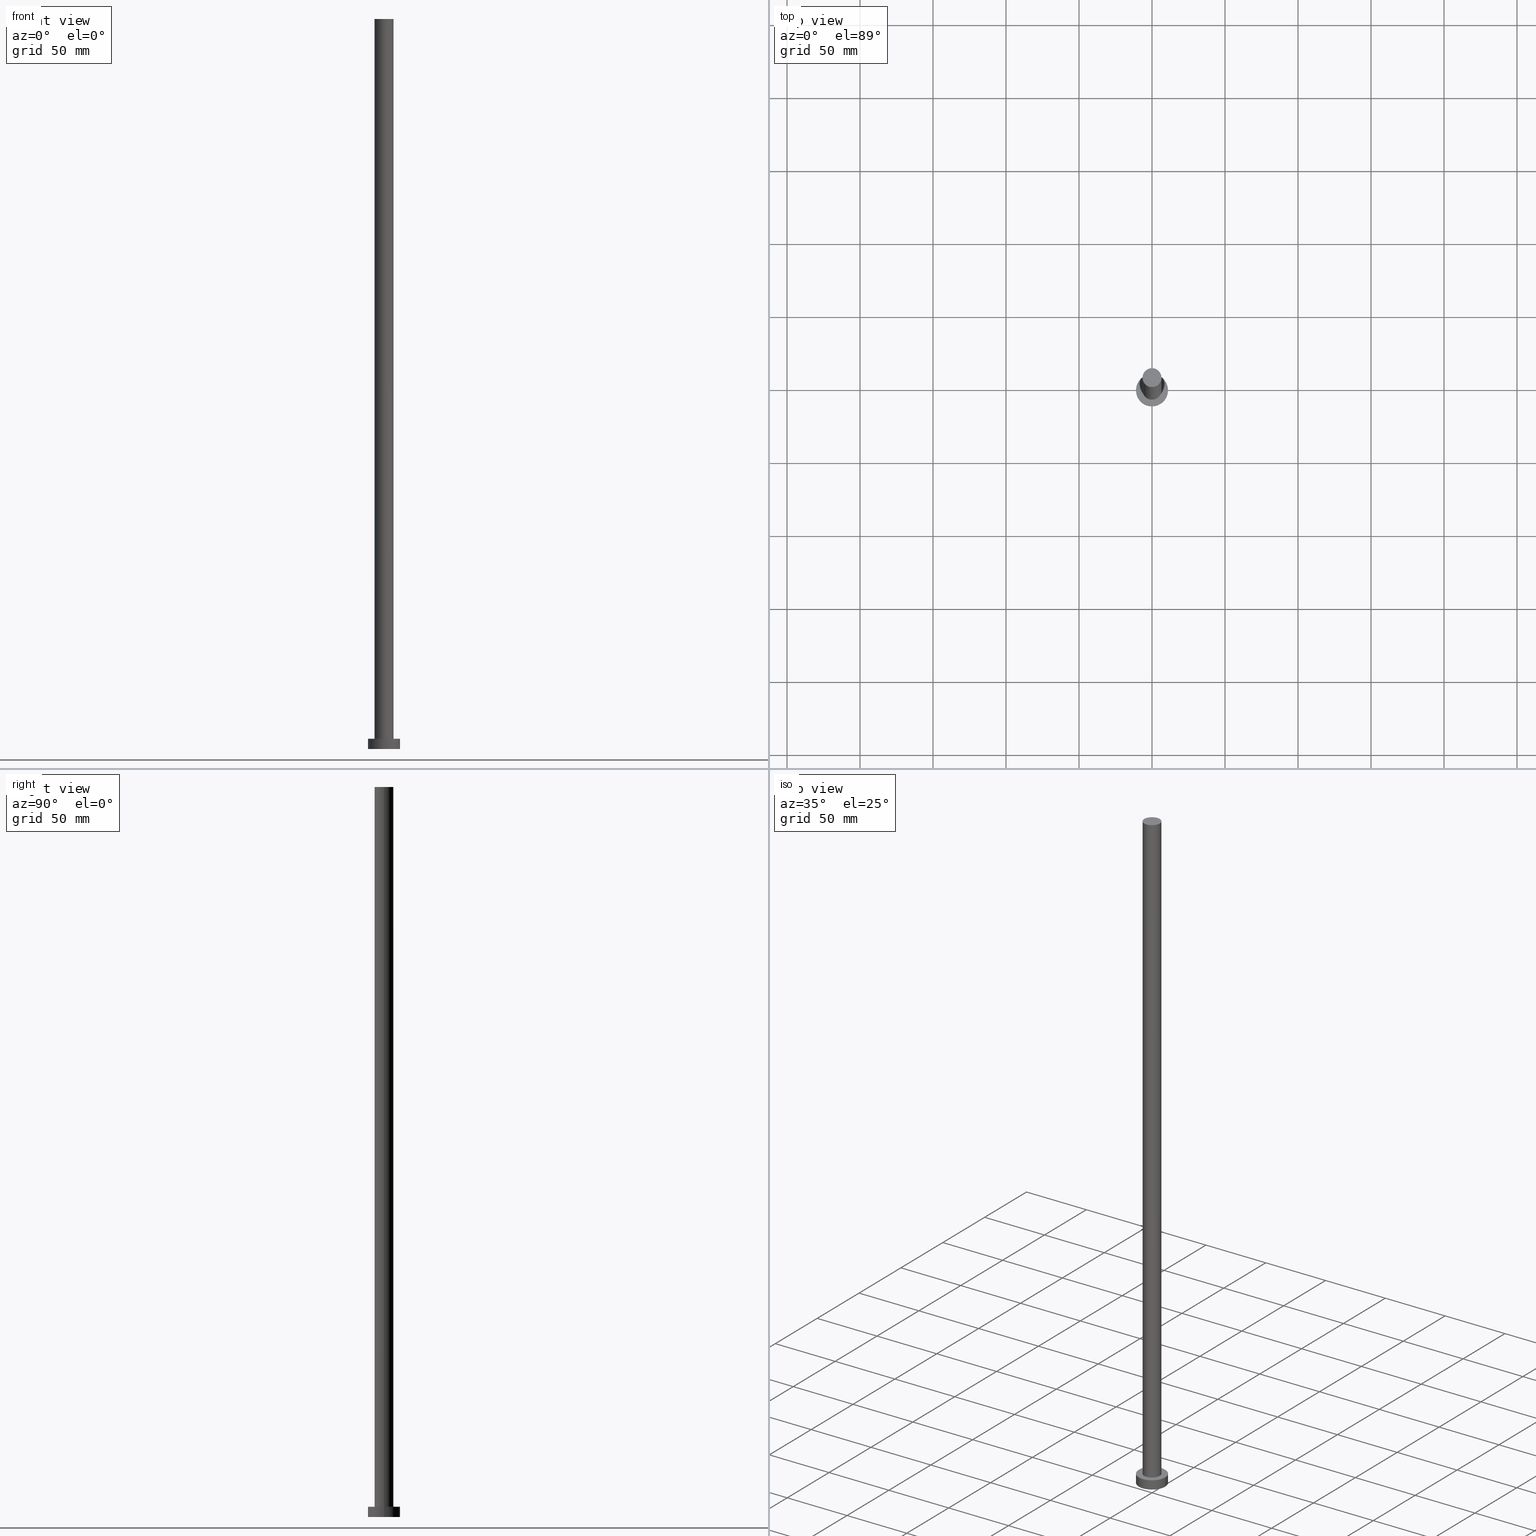
[diagram: canonical four-view strip — front | top / right | iso, engineering-drawing reading convention]
A machine part, canonical four-view strip (front | top / right | iso — engineering-drawing reading convention). The complete STEP part file that produces these views, byte-faithful:
ISO-10303-21;
HEADER;
FILE_DESCRIPTION (( 'STEP AP203' ),
    '1' );
FILE_NAME ('ee39.STEP',
    '2023-02-13T11:35:08',
    ( '' ),
    ( '' ),
    'SwSTEP 2.0',
    'SolidWorks 2019',
    '' );
FILE_SCHEMA (( 'CONFIG_CONTROL_DESIGN' ));
ENDSEC;

DATA;
#1 = DIRECTION ( 'NONE',  ( 1.000000000000000000, 0.000000000000000000, 0.000000000000000000 ) ) ;
#2 = ADVANCED_FACE ( 'NONE', ( #192 ), #20, .F. ) ;
#3 = PERSON_AND_ORGANIZATION_ROLE ( 'creator' ) ;
#4 = LOCAL_TIME ( 12, 35, 8.000000000000000000, #68 ) ;
#5 = DIRECTION ( 'NONE',  ( 1.000000000000000000, 0.000000000000000000, -0.000000000000000000 ) ) ;
#6 = DIRECTION ( 'NONE',  ( -0.000000000000000000, -0.000000000000000000, -1.000000000000000000 ) ) ;
#7 = SHAPE_DEFINITION_REPRESENTATION ( #75, #244 ) ;
#8 = ADVANCED_FACE ( 'NONE', ( #47, #202 ), #122, .T. ) ;
#9 = CARTESIAN_POINT ( 'NONE',  ( 0.000000000000000000, 0.000000000000000000, 500.0000000000000000 ) ) ;
#10 = CARTESIAN_POINT ( 'NONE',  ( 6.500000000000000888, 7.960204194457796463E-16, 7.000000000000000000 ) ) ;
#11 = CC_DESIGN_SECURITY_CLASSIFICATION ( #12, ( #247 ) ) ;
#12 = SECURITY_CLASSIFICATION ( '', '', #102 ) ;
#13 = APPROVAL_DATE_TIME ( #240, #126 ) ;
#14 = VECTOR ( 'NONE', #6, 1000.000000000000000 ) ;
#15 = EDGE_CURVE ( 'NONE', #191, #62, #200, .T. ) ;
#16 = PERSON_AND_ORGANIZATION_ROLE ( 'creator' ) ;
#17 = APPROVAL_PERSON_ORGANIZATION ( #110, #167, #42 ) ;
#18 = VERTEX_POINT ( 'NONE', #103 ) ;
#19 = VECTOR ( 'NONE', #228, 1000.000000000000000 ) ;
#20 = PLANE ( 'NONE',  #30 ) ;
#21 = APPROVAL_DATE_TIME ( #25, #167 ) ;
#22 = EDGE_LOOP ( 'NONE', ( #111, #172, #194, #115 ) ) ;
#23 = CIRCLE ( 'NONE', #124, 6.500000000000000888 ) ;
#24 = EDGE_CURVE ( 'NONE', #150, #156, #189, .T. ) ;
#25 = DATE_AND_TIME ( #114, #81 ) ;
#26 = LINE ( 'NONE', #241, #208 ) ;
#27 = AXIS2_PLACEMENT_3D ( 'NONE', #46, #175, #173 ) ;
#28 = CARTESIAN_POINT ( 'NONE',  ( 0.000000000000000000, 0.000000000000000000, 7.000000000000000000 ) ) ;
#29 = CARTESIAN_POINT ( 'NONE',  ( 0.000000000000000000, 0.000000000000000000, 7.000000000000000000 ) ) ;
#30 = AXIS2_PLACEMENT_3D ( 'NONE', #159, #104, #204 ) ;
#31 = CC_DESIGN_PERSON_AND_ORGANIZATION_ASSIGNMENT ( #100, #147, ( #247 ) ) ;
#32 = DIRECTION ( 'NONE',  ( 1.000000000000000000, 0.000000000000000000, 0.000000000000000000 ) ) ;
#33 = APPROVAL_DATE_TIME ( #222, #52 ) ;
#34 = AXIS2_PLACEMENT_3D ( 'NONE', #28, #165, #5 ) ;
#35 =( GEOMETRIC_REPRESENTATION_CONTEXT ( 3 ) GLOBAL_UNCERTAINTY_ASSIGNED_CONTEXT ( ( #148 ) ) GLOBAL_UNIT_ASSIGNED_CONTEXT ( ( #195, #57, #158 ) ) REPRESENTATION_CONTEXT ( 'NONE', 'WORKASPACE' ) );
#36 = ORIENTED_EDGE ( 'NONE', *, *, #24, .F. ) ;
#37 = AXIS2_PLACEMENT_3D ( 'NONE', #29, #186, #66 ) ;
#38 = CYLINDRICAL_SURFACE ( 'NONE', #27, 6.500000000000000888 ) ;
#39 = ORIENTED_EDGE ( 'NONE', *, *, #133, .T. ) ;
#40 = DIRECTION ( 'NONE',  ( 1.000000000000000000, 0.000000000000000000, 0.000000000000000000 ) ) ;
#41 = ORIENTED_EDGE ( 'NONE', *, *, #212, .T. ) ;
#42 = APPROVAL_ROLE ( '' ) ;
#43 = ORIENTED_EDGE ( 'NONE', *, *, #212, .F. ) ;
#44 = CALENDAR_DATE ( 2023, 13, 2 ) ;
#45 = AXIS2_PLACEMENT_3D ( 'NONE', #140, #87, #121 ) ;
#46 = CARTESIAN_POINT ( 'NONE',  ( 0.000000000000000000, 0.000000000000000000, 500.0000000000000000 ) ) ;
#47 = FACE_BOUND ( 'NONE', #77, .T. ) ;
#48 = LINE ( 'NONE', #50, #74 ) ;
#49 = CARTESIAN_POINT ( 'NONE',  ( -11.00000000000000000, 0.000000000000000000, 7.000000000000000000 ) ) ;
#50 = CARTESIAN_POINT ( 'NONE',  ( 6.500000000000000888, 7.960204194457796463E-16, 500.0000000000000000 ) ) ;
#51 = AXIS2_PLACEMENT_3D ( 'NONE', #63, #139, #40 ) ;
#52 = APPROVAL ( #185, 'NEUR�EN�' ) ;
#53 = EDGE_LOOP ( 'NONE', ( #179, #60, #220, #58 ) ) ;
#54 = AXIS2_PLACEMENT_3D ( 'NONE', #199, #255, #76 ) ;
#55 = DIRECTION ( 'NONE',  ( 0.000000000000000000, 0.000000000000000000, 1.000000000000000000 ) ) ;
#56 = ORIENTED_EDGE ( 'NONE', *, *, #64, .F. ) ;
#57 =( NAMED_UNIT ( * ) PLANE_ANGLE_UNIT ( ) SI_UNIT ( $, .RADIAN. ) );
#58 = ORIENTED_EDGE ( 'NONE', *, *, #248, .T. ) ;
#59 = PERSON_AND_ORGANIZATION ( #141, #113 ) ;
#60 = ORIENTED_EDGE ( 'NONE', *, *, #229, .F. ) ;
#61 = APPROVAL_STATUS ( 'not_yet_approved' ) ;
#62 = VERTEX_POINT ( 'NONE', #184 ) ;
#63 = CARTESIAN_POINT ( 'NONE',  ( 0.000000000000000000, 0.000000000000000000, 0.000000000000000000 ) ) ;
#64 = EDGE_CURVE ( 'NONE', #18, #156, #142, .T. ) ;
#65 = CARTESIAN_POINT ( 'NONE',  ( -6.500000000000000888, 0.000000000000000000, 500.0000000000000000 ) ) ;
#66 = DIRECTION ( 'NONE',  ( -1.000000000000000000, 0.000000000000000000, 0.000000000000000000 ) ) ;
#67 = CC_DESIGN_PERSON_AND_ORGANIZATION_ASSIGNMENT ( #86, #105, ( #12 ) ) ;
#68 = COORDINATED_UNIVERSAL_TIME_OFFSET ( 1, 0, .AHEAD. ) ;
#69 = CARTESIAN_POINT ( 'NONE',  ( 0.000000000000000000, 0.000000000000000000, 7.000000000000000000 ) ) ;
#70 = CARTESIAN_POINT ( 'NONE',  ( 6.500000000000000888, 7.960204194457796463E-16, 500.0000000000000000 ) ) ;
#71 = DATE_TIME_ROLE ( 'classification_date' ) ;
#72 = COORDINATED_UNIVERSAL_TIME_OFFSET ( 1, 0, .AHEAD. ) ;
#73 = LOCAL_TIME ( 12, 35, 8.000000000000000000, #143 ) ;
#74 = VECTOR ( 'NONE', #203, 1000.000000000000000 ) ;
#75 = PRODUCT_DEFINITION_SHAPE ( 'NONE', 'NONE',  #188 ) ;
#76 = DIRECTION ( 'NONE',  ( 1.000000000000000000, 0.000000000000000000, 0.000000000000000000 ) ) ;
#77 = EDGE_LOOP ( 'NONE', ( #251, #36 ) ) ;
#78 = FACE_OUTER_BOUND ( 'NONE', #94, .T. ) ;
#79 = CIRCLE ( 'NONE', #250, 11.00000000000000000 ) ;
#80 = VERTEX_POINT ( 'NONE', #85 ) ;
#81 = LOCAL_TIME ( 12, 35, 8.000000000000000000, #180 ) ;
#82 = CARTESIAN_POINT ( 'NONE',  ( 0.000000000000000000, 0.000000000000000000, 500.0000000000000000 ) ) ;
#83 = DIRECTION ( 'NONE',  ( -0.000000000000000000, -0.000000000000000000, -1.000000000000000000 ) ) ;
#84 = PERSON_AND_ORGANIZATION ( #141, #113 ) ;
#85 = CARTESIAN_POINT ( 'NONE',  ( 11.00000000000000000, 1.347111479062088405E-15, 0.000000000000000000 ) ) ;
#86 = PERSON_AND_ORGANIZATION ( #141, #113 ) ;
#87 = DIRECTION ( 'NONE',  ( -0.000000000000000000, -0.000000000000000000, -1.000000000000000000 ) ) ;
#88 = AXIS2_PLACEMENT_3D ( 'NONE', #82, #237, #213 ) ;
#89 = FACE_OUTER_BOUND ( 'NONE', #95, .T. ) ;
#90 = APPROVAL_ROLE ( '' ) ;
#91 = PERSON_AND_ORGANIZATION ( #141, #113 ) ;
#92 = APPLICATION_CONTEXT ( 'configuration controlled 3d designs of mechanical parts and assemblies' ) ;
#93 = EDGE_CURVE ( 'NONE', #211, #150, #48, .T. ) ;
#94 = EDGE_LOOP ( 'NONE', ( #138, #39 ) ) ;
#95 = EDGE_LOOP ( 'NONE', ( #153, #217, #209, #56 ) ) ;
#96 = CC_DESIGN_PERSON_AND_ORGANIZATION_ASSIGNMENT ( #98, #3, ( #188 ) ) ;
#97 = APPLICATION_PROTOCOL_DEFINITION ( 'international standard', 'config_control_design', 1994, #170 ) ;
#98 = PERSON_AND_ORGANIZATION ( #141, #113 ) ;
#99 = DIRECTION ( 'NONE',  ( 0.000000000000000000, 0.000000000000000000, 1.000000000000000000 ) ) ;
#100 = PERSON_AND_ORGANIZATION ( #141, #113 ) ;
#101 = CARTESIAN_POINT ( 'NONE',  ( 0.000000000000000000, 0.000000000000000000, 7.000000000000000000 ) ) ;
#102 = SECURITY_CLASSIFICATION_LEVEL ( 'unclassified' ) ;
#103 = CARTESIAN_POINT ( 'NONE',  ( -6.500000000000000888, 0.000000000000000000, 500.0000000000000000 ) ) ;
#104 = DIRECTION ( 'NONE',  ( 0.000000000000000000, 0.000000000000000000, 1.000000000000000000 ) ) ;
#105 = PERSON_AND_ORGANIZATION_ROLE ( 'classification_officer' ) ;
#106 = ADVANCED_FACE ( 'NONE', ( #123 ), #181, .T. ) ;
#107 = AXIS2_PLACEMENT_3D ( 'NONE', #69, #243, #225 ) ;
#108 = LOCAL_TIME ( 12, 35, 8.000000000000000000, #137 ) ;
#109 = ORIENTED_EDGE ( 'NONE', *, *, #161, .T. ) ;
#110 = PERSON_AND_ORGANIZATION ( #141, #113 ) ;
#111 = ORIENTED_EDGE ( 'NONE', *, *, #161, .F. ) ;
#112 = CC_DESIGN_APPROVAL ( #126, ( #247 ) ) ;
#113 = ORGANIZATION ( 'NEUR�EN�', 'NEUR�EN�', '' ) ;
#114 = CALENDAR_DATE ( 2023, 13, 2 ) ;
#115 = ORIENTED_EDGE ( 'NONE', *, *, #15, .F. ) ;
#116 = CLOSED_SHELL ( 'NONE', ( #171, #106, #183, #8, #2, #233, #246 ) ) ;
#117 = DATE_AND_TIME ( #44, #108 ) ;
#118 = DIRECTION ( 'NONE',  ( 0.000000000000000000, 0.000000000000000000, 1.000000000000000000 ) ) ;
#119 = CARTESIAN_POINT ( 'NONE',  ( 0.000000000000000000, 0.000000000000000000, 7.000000000000000000 ) ) ;
#120 = CARTESIAN_POINT ( 'NONE',  ( 0.000000000000000000, 0.000000000000000000, 0.000000000000000000 ) ) ;
#121 = DIRECTION ( 'NONE',  ( -1.000000000000000000, 0.000000000000000000, 0.000000000000000000 ) ) ;
#122 = PLANE ( 'NONE',  #34 ) ;
#123 = FACE_OUTER_BOUND ( 'NONE', #22, .T. ) ;
#124 = AXIS2_PLACEMENT_3D ( 'NONE', #218, #55, #193 ) ;
#125 = DATE_AND_TIME ( #168, #4 ) ;
#126 = APPROVAL ( #163, 'NEUR�EN�' ) ;
#127 = CC_DESIGN_DATE_AND_TIME_ASSIGNMENT ( #117, #197, ( #188 ) ) ;
#128 = VERTEX_POINT ( 'NONE', #162 ) ;
#129 = EDGE_CURVE ( 'NONE', #128, #80, #26, .T. ) ;
#130 = CARTESIAN_POINT ( 'NONE',  ( 0.000000000000000000, 0.000000000000000000, 0.000000000000000000 ) ) ;
#131 = ORIENTED_EDGE ( 'NONE', *, *, #129, .F. ) ;
#132 = DIRECTION ( 'NONE',  ( 0.000000000000000000, 0.000000000000000000, 1.000000000000000000 ) ) ;
#133 = EDGE_CURVE ( 'NONE', #211, #18, #169, .T. ) ;
#134 = FACE_OUTER_BOUND ( 'NONE', #53, .T. ) ;
#135 = ORIENTED_EDGE ( 'NONE', *, *, #253, .F. ) ;
#136 = CIRCLE ( 'NONE', #54, 11.00000000000000000 ) ;
#137 = COORDINATED_UNIVERSAL_TIME_OFFSET ( 1, 0, .AHEAD. ) ;
#138 = ORIENTED_EDGE ( 'NONE', *, *, #229, .T. ) ;
#139 = DIRECTION ( 'NONE',  ( 0.000000000000000000, 0.000000000000000000, 1.000000000000000000 ) ) ;
#140 = CARTESIAN_POINT ( 'NONE',  ( 0.000000000000000000, 0.000000000000000000, 500.0000000000000000 ) ) ;
#141 = PERSON ( 'NEUR�EN�', 'NEUR�EN�', 'NEUR�EN�', ('NEUR�EN�'), ('NEUR�EN�'), ('NEUR�EN�') ) ;
#142 = LINE ( 'NONE', #65, #14 ) ;
#143 = COORDINATED_UNIVERSAL_TIME_OFFSET ( 1, 0, .AHEAD. ) ;
#144 = FACE_OUTER_BOUND ( 'NONE', #254, .T. ) ;
#145 = PERSON_AND_ORGANIZATION ( #141, #113 ) ;
#146 = DIRECTION ( 'NONE',  ( 1.000000000000000000, 0.000000000000000000, 0.000000000000000000 ) ) ;
#147 = PERSON_AND_ORGANIZATION_ROLE ( 'design_supplier' ) ;
#148 = UNCERTAINTY_MEASURE_WITH_UNIT (LENGTH_MEASURE( 1.000000000000000082E-05 ), #195, 'distance_accuracy_value', 'NONE');
#149 = MANIFOLD_SOLID_BREP ( 'P�idat vysunut�m3', #116 ) ;
#150 = VERTEX_POINT ( 'NONE', #10 ) ;
#151 = AXIS2_PLACEMENT_3D ( 'NONE', #120, #234, #178 ) ;
#152 = MECHANICAL_CONTEXT ( 'NONE', #170, 'mechanical' ) ;
#153 = ORIENTED_EDGE ( 'NONE', *, *, #133, .F. ) ;
#154 = PRODUCT_RELATED_PRODUCT_CATEGORY ( 'detail', '', ( #227 ) ) ;
#155 = PERSON_AND_ORGANIZATION_ROLE ( 'design_owner' ) ;
#156 = VERTEX_POINT ( 'NONE', #187 ) ;
#157 = CIRCLE ( 'NONE', #51, 11.00000000000000000 ) ;
#158 =( NAMED_UNIT ( * ) SI_UNIT ( $, .STERADIAN. ) SOLID_ANGLE_UNIT ( ) );
#159 = CARTESIAN_POINT ( 'NONE',  ( 0.000000000000000000, 0.000000000000000000, 0.000000000000000000 ) ) ;
#160 = AXIS2_PLACEMENT_3D ( 'NONE', #101, #118, #146 ) ;
#161 = EDGE_CURVE ( 'NONE', #128, #191, #79, .T. ) ;
#162 = CARTESIAN_POINT ( 'NONE',  ( 11.00000000000000000, 1.347111479062088405E-15, 7.000000000000000000 ) ) ;
#163 = APPROVAL_STATUS ( 'not_yet_approved' ) ;
#164 = DESIGN_CONTEXT ( 'detailed design', #92, 'design' ) ;
#165 = DIRECTION ( 'NONE',  ( 0.000000000000000000, 0.000000000000000000, 1.000000000000000000 ) ) ;
#166 = CYLINDRICAL_SURFACE ( 'NONE', #45, 6.500000000000000888 ) ;
#167 = APPROVAL ( #61, 'NEUR�EN�' ) ;
#168 = CALENDAR_DATE ( 2023, 13, 2 ) ;
#169 = CIRCLE ( 'NONE', #235, 6.500000000000000888 ) ;
#170 = APPLICATION_CONTEXT ( 'configuration controlled 3d designs of mechanical parts and assemblies' ) ;
#171 = ADVANCED_FACE ( 'NONE', ( #89 ), #166, .T. ) ;
#172 = ORIENTED_EDGE ( 'NONE', *, *, #129, .T. ) ;
#173 = DIRECTION ( 'NONE',  ( -1.000000000000000000, 0.000000000000000000, 0.000000000000000000 ) ) ;
#174 = EDGE_LOOP ( 'NONE', ( #196, #109 ) ) ;
#175 = DIRECTION ( 'NONE',  ( -0.000000000000000000, -0.000000000000000000, -1.000000000000000000 ) ) ;
#176 = CC_DESIGN_APPROVAL ( #167, ( #188 ) ) ;
#177 = PLANE ( 'NONE',  #88 ) ;
#178 = DIRECTION ( 'NONE',  ( 1.000000000000000000, 0.000000000000000000, 0.000000000000000000 ) ) ;
#179 = ORIENTED_EDGE ( 'NONE', *, *, #93, .F. ) ;
#180 = COORDINATED_UNIVERSAL_TIME_OFFSET ( 1, 0, .AHEAD. ) ;
#181 = CYLINDRICAL_SURFACE ( 'NONE', #37, 11.00000000000000000 ) ;
#182 = LOCAL_TIME ( 12, 35, 8.000000000000000000, #72 ) ;
#183 = ADVANCED_FACE ( 'NONE', ( #144 ), #221, .T. ) ;
#184 = CARTESIAN_POINT ( 'NONE',  ( -11.00000000000000000, 0.000000000000000000, 0.000000000000000000 ) ) ;
#185 = APPROVAL_STATUS ( 'not_yet_approved' ) ;
#186 = DIRECTION ( 'NONE',  ( -0.000000000000000000, -0.000000000000000000, -1.000000000000000000 ) ) ;
#187 = CARTESIAN_POINT ( 'NONE',  ( -6.500000000000000888, 0.000000000000000000, 7.000000000000000000 ) ) ;
#188 = PRODUCT_DEFINITION ( 'NEZN�M�', '', #247, #164 ) ;
#189 = CIRCLE ( 'NONE', #160, 6.500000000000000888 ) ;
#190 = AXIS2_PLACEMENT_3D ( 'NONE', #130, #132, #210 ) ;
#191 = VERTEX_POINT ( 'NONE', #49 ) ;
#192 = FACE_OUTER_BOUND ( 'NONE', #231, .T. ) ;
#193 = DIRECTION ( 'NONE',  ( 1.000000000000000000, 0.000000000000000000, 0.000000000000000000 ) ) ;
#194 = ORIENTED_EDGE ( 'NONE', *, *, #219, .T. ) ;
#195 =( LENGTH_UNIT ( ) NAMED_UNIT ( * ) SI_UNIT ( .MILLI., .METRE. ) );
#196 = ORIENTED_EDGE ( 'NONE', *, *, #253, .T. ) ;
#197 = DATE_TIME_ROLE ( 'creation_date' ) ;
#198 = CARTESIAN_POINT ( 'NONE',  ( -11.00000000000000000, 0.000000000000000000, 7.000000000000000000 ) ) ;
#199 = CARTESIAN_POINT ( 'NONE',  ( 0.000000000000000000, 0.000000000000000000, 7.000000000000000000 ) ) ;
#200 = LINE ( 'NONE', #198, #19 ) ;
#201 = CC_DESIGN_PERSON_AND_ORGANIZATION_ASSIGNMENT ( #145, #16, ( #247 ) ) ;
#202 = FACE_OUTER_BOUND ( 'NONE', #174, .T. ) ;
#203 = DIRECTION ( 'NONE',  ( -0.000000000000000000, -0.000000000000000000, -1.000000000000000000 ) ) ;
#204 = DIRECTION ( 'NONE',  ( 1.000000000000000000, 0.000000000000000000, -0.000000000000000000 ) ) ;
#205 = CIRCLE ( 'NONE', #151, 11.00000000000000000 ) ;
#206 = CC_DESIGN_PERSON_AND_ORGANIZATION_ASSIGNMENT ( #59, #155, ( #227 ) ) ;
#207 = CC_DESIGN_APPROVAL ( #52, ( #12 ) ) ;
#208 = VECTOR ( 'NONE', #83, 1000.000000000000000 ) ;
#209 = ORIENTED_EDGE ( 'NONE', *, *, #24, .T. ) ;
#210 = DIRECTION ( 'NONE',  ( 1.000000000000000000, 0.000000000000000000, 0.000000000000000000 ) ) ;
#211 = VERTEX_POINT ( 'NONE', #70 ) ;
#212 = EDGE_CURVE ( 'NONE', #62, #80, #205, .T. ) ;
#213 = DIRECTION ( 'NONE',  ( 1.000000000000000000, 0.000000000000000000, -0.000000000000000000 ) ) ;
#214 = ORIENTED_EDGE ( 'NONE', *, *, #15, .T. ) ;
#215 = APPLICATION_PROTOCOL_DEFINITION ( 'international standard', 'config_control_design', 1994, #92 ) ;
#216 = APPROVAL_PERSON_ORGANIZATION ( #91, #52, #90 ) ;
#217 = ORIENTED_EDGE ( 'NONE', *, *, #93, .T. ) ;
#218 = CARTESIAN_POINT ( 'NONE',  ( 0.000000000000000000, 0.000000000000000000, 500.0000000000000000 ) ) ;
#219 = EDGE_CURVE ( 'NONE', #80, #62, #157, .T. ) ;
#220 = ORIENTED_EDGE ( 'NONE', *, *, #64, .T. ) ;
#221 = CYLINDRICAL_SURFACE ( 'NONE', #107, 11.00000000000000000 ) ;
#222 = DATE_AND_TIME ( #226, #73 ) ;
#223 = DIRECTION ( 'NONE',  ( 0.000000000000000000, 0.000000000000000000, 1.000000000000000000 ) ) ;
#224 = CALENDAR_DATE ( 2023, 13, 2 ) ;
#225 = DIRECTION ( 'NONE',  ( -1.000000000000000000, 0.000000000000000000, 0.000000000000000000 ) ) ;
#226 = CALENDAR_DATE ( 2023, 13, 2 ) ;
#227 = PRODUCT ( 'ee39', 'ee39', '', ( #152 ) ) ;
#228 = DIRECTION ( 'NONE',  ( -0.000000000000000000, -0.000000000000000000, -1.000000000000000000 ) ) ;
#229 = EDGE_CURVE ( 'NONE', #18, #211, #23, .T. ) ;
#230 = AXIS2_PLACEMENT_3D ( 'NONE', #119, #252, #1 ) ;
#231 = EDGE_LOOP ( 'NONE', ( #43, #236 ) ) ;
#232 = APPROVAL_PERSON_ORGANIZATION ( #84, #126, #245 ) ;
#233 = ADVANCED_FACE ( 'NONE', ( #134 ), #38, .T. ) ;
#234 = DIRECTION ( 'NONE',  ( 0.000000000000000000, 0.000000000000000000, 1.000000000000000000 ) ) ;
#235 = AXIS2_PLACEMENT_3D ( 'NONE', #9, #223, #32 ) ;
#236 = ORIENTED_EDGE ( 'NONE', *, *, #219, .F. ) ;
#237 = DIRECTION ( 'NONE',  ( 0.000000000000000000, 0.000000000000000000, 1.000000000000000000 ) ) ;
#238 = DIRECTION ( 'NONE',  ( 1.000000000000000000, 0.000000000000000000, 0.000000000000000000 ) ) ;
#239 = CARTESIAN_POINT ( 'NONE',  ( 0.000000000000000000, 0.000000000000000000, 7.000000000000000000 ) ) ;
#240 = DATE_AND_TIME ( #224, #182 ) ;
#241 = CARTESIAN_POINT ( 'NONE',  ( 11.00000000000000000, 1.347111479062088405E-15, 7.000000000000000000 ) ) ;
#242 = CIRCLE ( 'NONE', #230, 6.500000000000000888 ) ;
#243 = DIRECTION ( 'NONE',  ( -0.000000000000000000, -0.000000000000000000, -1.000000000000000000 ) ) ;
#244 = ADVANCED_BREP_SHAPE_REPRESENTATION ( 'ee39', ( #149, #190 ), #35 ) ;
#245 = APPROVAL_ROLE ( '' ) ;
#246 = ADVANCED_FACE ( 'NONE', ( #78 ), #177, .T. ) ;
#247 = PRODUCT_DEFINITION_FORMATION_WITH_SPECIFIED_SOURCE ( 'LIBOVOLN�', '', #227, .NOT_KNOWN. ) ;
#248 = EDGE_CURVE ( 'NONE', #156, #150, #242, .T. ) ;
#249 = CC_DESIGN_DATE_AND_TIME_ASSIGNMENT ( #125, #71, ( #12 ) ) ;
#250 = AXIS2_PLACEMENT_3D ( 'NONE', #239, #99, #238 ) ;
#251 = ORIENTED_EDGE ( 'NONE', *, *, #248, .F. ) ;
#252 = DIRECTION ( 'NONE',  ( 0.000000000000000000, 0.000000000000000000, 1.000000000000000000 ) ) ;
#253 = EDGE_CURVE ( 'NONE', #191, #128, #136, .T. ) ;
#254 = EDGE_LOOP ( 'NONE', ( #131, #135, #214, #41 ) ) ;
#255 = DIRECTION ( 'NONE',  ( 0.000000000000000000, 0.000000000000000000, 1.000000000000000000 ) ) ;
ENDSEC;
END-ISO-10303-21;
